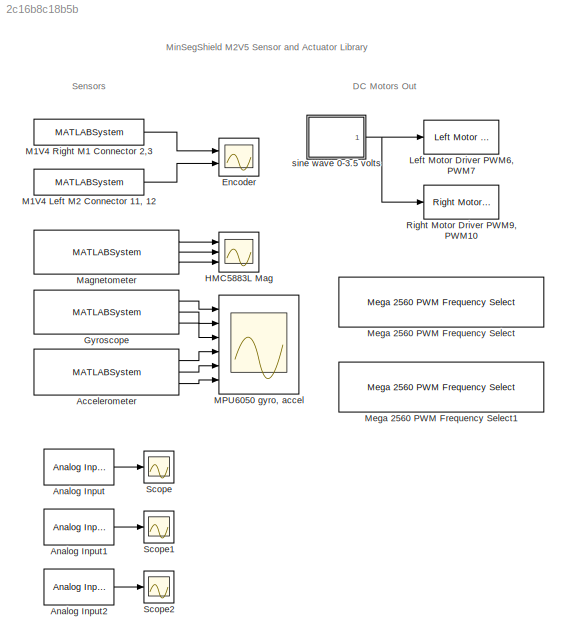
MODEL slx_2c16b8c18b5b
KIND model
CONFIG AbsTol = auto
CONFIG FixedStep = auto
CONFIG MaxStep = auto
CONFIG MinStep = auto
CONFIG RelTol = 1e-3
CONFIG SampleTimeConstraint = Unconstrained
CONFIG Solver = ode45
CONFIG SolverMode = Auto
CONFIG SolverName = ode45
CONFIG StartTime = 0.0
CONFIG StopTime = 10.0
BLOCK [MATLABSystem] Accelerometer
  MaskDisplay = disp('soMPU6050Accel');\nport_label('output',1,'xaccel');\nport_label('output',2,'yaccel');\nport_label('output',3,'zaccel');
  MaskType = soMPU6050Accel
  Ports = [0, 3]
  SimulateUsing = Code generation
  System = soMPU6050Accel
BLOCK [Reference] Analog Input  REF=arduinolib/Analog Input
  Ports = [0, 1]
  SourceBlock = arduinolib/Analog Input
  SourceType = Arduino Analog Input
  blockPlatform = arduino
  pinNumber = 0
  sampleTime = -1
BLOCK [Reference] Analog Input1  REF=arduinolib/Analog Input
  Ports = [0, 1]
  SourceBlock = arduinolib/Analog Input
  SourceType = Arduino Analog Input
  blockPlatform = arduino
  pinNumber = 1
  sampleTime = -1
BLOCK [Reference] Analog Input2  REF=arduinolib/Analog Input
  Ports = [0, 1]
  SourceBlock = arduinolib/Analog Input
  SourceType = Arduino Analog Input
  blockPlatform = arduino
  pinNumber = 2
  sampleTime = -1
BLOCK [Scope] Encoder
  DataFormat = StructureWithTime
  Floating = off
  NumInputPorts = 2
  Ports = [2]
  SampleTime = 0
  TimeRange = 10
  YMax = -6150~-8425
  YMin = -6950~-8950
BLOCK [MATLABSystem] Gyroscope
  DLPFmode = 0
  MaskDisplay = disp('soMPU6050Gyro');\nport_label('output',1,'xvel');\nport_label('output',2,'yvel');\nport_label('output',3,'zvel');
  MaskType = soMPU6050Gyro
  Ports = [0, 3]
  System = soMPU6050Gyro
BLOCK [Scope] HMC5883L Mag
  Commented = on
  DataFormat = StructureWithTime
  Floating = off
  NumInputPorts = 3
  Ports = [3]
  SampleTime = 0
  SaveName = ScopeData4
  TimeRange = 10
  YMax = 80~-50~-230
  YMin = -5~-210~-267.5
BLOCK [Reference] Left Motor Driver PWM6, PWM7  REF=MinSegLibrary_M2V5/Left Motor Driver
PWM6, PWM7
  PWMoffset = 0
  Ports = [1]
  SourceBlock = MinSegLibrary_M2V5/Left Motor Driver\nPWM6, PWM7
  Vsupply = 5
BLOCK [MATLABSystem] M1V4 Left M2 Connector 11, 12
  Encoder = 4
  MaskDisplay = disp('soEncoder');\nport_label('output',1,'y');
  MaskType = Encoder_arduino
  PinA = 11
  PinB = 12
  Ports = [0, 1]
  System = Encoder_arduino
BLOCK [MATLABSystem] M1V4 Right M1 Connector 2,3
  Encoder = 0
  MaskDisplay = disp('soEncoder');\nport_label('output',1,'y');
  MaskType = Encoder_arduino
  PinA = 2
  PinB = 3
  Ports = [0, 1]
  System = Encoder_arduino
BLOCK [Scope] MPU6050 gyro, accel
  DataFormat = StructureWithTime
  Floating = off
  NumInputPorts = 6
  Ports = [6]
  SampleTime = 0
  SaveName = ScopeData1
  TimeRange = 10
  YMax = 15000~40000~20000~4000~2500~10000
  YMin = -25000~-40000~-20000~-3000~-1500~3000
BLOCK [MATLABSystem] Magnetometer
  Commented = on
  MaskDisplay = disp('soHMC5883L');\nport_label('output',1,'xmag');\nport_label('output',2,'ymag');\nport_label('output',3,'zmag');
  MaskType = soHMC5883L
  Ports = [0, 3]
  SimulateUsing = Code generation
  System = soHMC5883L
BLOCK [Reference] Mega 2560 PWM Frequency Select  REF=RASPlib/Mega 2560 PWM Frequency Select
  Frequency = 32KHz
  Ports = []
  SourceBlock = RASPlib/Mega 2560 PWM Frequency Select
  Timer = 4 - pins 6, 7, 8
BLOCK [Reference] Mega 2560 PWM Frequency Select1  REF=RASPlib/Mega 2560 PWM Frequency Select
  Frequency = 32KHz
  Ports = []
  SourceBlock = RASPlib/Mega 2560 PWM Frequency Select
  Timer = 2 - pins 9, 10
BLOCK [Reference] Right Motor Driver PWM9, PWM10   REF=MinSegLibrary_M2V5/Right Motor Driver
PWM9, PWM10

  PWMoffset = 0
  Ports = [1]
  SourceBlock = MinSegLibrary_M2V5/Right Motor Driver\nPWM9, PWM10
  Vsupply = 5
BLOCK [Scope] Scope
  Floating = off
  NumInputPorts = 1
  Ports = [1]
  SaveName = ScopeData2
  YMax = 1100
  YMin = 0
BLOCK [Scope] Scope1
  Floating = off
  NumInputPorts = 1
  Ports = [1]
  SaveName = ScopeData3
BLOCK [Scope] Scope2
  Floating = off
  NumInputPorts = 1
  Ports = [1]
  SaveName = ScopeData5
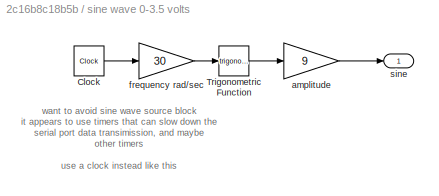
BLOCK [SubSystem] sine wave 0-3.5 volts
  Ports = [0, 1]
  RequestExecContextInheritance = off
BLOCK [Clock] sine wave 0-3.5 volts/Clock
BLOCK [Trigonometry] sine wave 0-3.5 volts/Trigonometric Function
  Ports = [1, 1]
BLOCK [Gain] sine wave 0-3.5 volts/amplitude
  Gain = 9
  OutDataTypeStr = Inherit: Inherit via internal rule
  ParamDataTypeStr = Inherit: Inherit via internal rule
  SaturateOnIntegerOverflow = off
BLOCK [Gain] sine wave 0-3.5 volts/frequency rad//sec
  Gain = 30
  OutDataTypeStr = Inherit: Inherit via internal rule
  ParamDataTypeStr = Inherit: Inherit via internal rule
  SaturateOnIntegerOverflow = off
BLOCK [Outport] sine wave 0-3.5 volts/sine
  IconDisplay = Port number
ANNOTATION (root): DC Motors Out
ANNOTATION (root): MinSegShield M2V5 Sensor and Actuator Library
ANNOTATION (root): Sensors
ANNOTATION sine wave 0-3.5 volts: want to avoid sine wave source block it appears to use timers that can slow down the serial port data transimission, and maybe other timers use a clock instead like this
LINE Accelerometer:1 -> MPU6050 gyro, accel:4
LINE Accelerometer:2 -> MPU6050 gyro, accel:5
LINE Accelerometer:3 -> MPU6050 gyro, accel:6
LINE Analog Input1:1 -> Scope1:1
LINE Analog Input2:1 -> Scope2:1
LINE Analog Input:1 -> Scope:1
LINE Gyroscope:1 -> MPU6050 gyro, accel:1
LINE Gyroscope:2 -> MPU6050 gyro, accel:2
LINE Gyroscope:3 -> MPU6050 gyro, accel:3
LINE M1V4 Left M2 Connector 11, 12:1 -> Encoder:2
LINE M1V4 Right M1 Connector 2,3:1 -> Encoder:1
LINE Magnetometer:1 -> HMC5883L Mag:1
LINE Magnetometer:2 -> HMC5883L Mag:2
LINE Magnetometer:3 -> HMC5883L Mag:3
LINE sine wave 0-3.5 volts/Clock:1 -> sine wave 0-3.5 volts/frequency rad//sec:1
LINE sine wave 0-3.5 volts/Trigonometric Function:1 -> sine wave 0-3.5 volts/amplitude:1
LINE sine wave 0-3.5 volts/amplitude:1 -> sine wave 0-3.5 volts/sine:1
LINE sine wave 0-3.5 volts/frequency rad//sec:1 -> sine wave 0-3.5 volts/Trigonometric Function:1
NET sine wave 0-3.5 volts:1 -> Left Motor Driver PWM6, PWM7:1, Right Motor Driver PWM9, PWM10 :1
note: NET lines group one-source signal fan-out (src -> all destinations, sorted); 1:1 wires keep LINE
